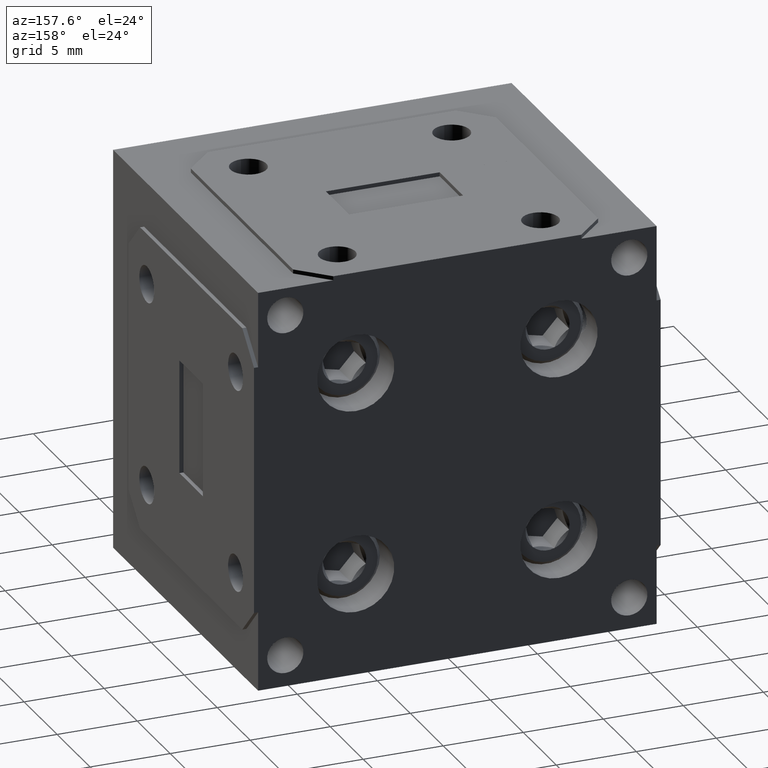
[diagram: clean part render]
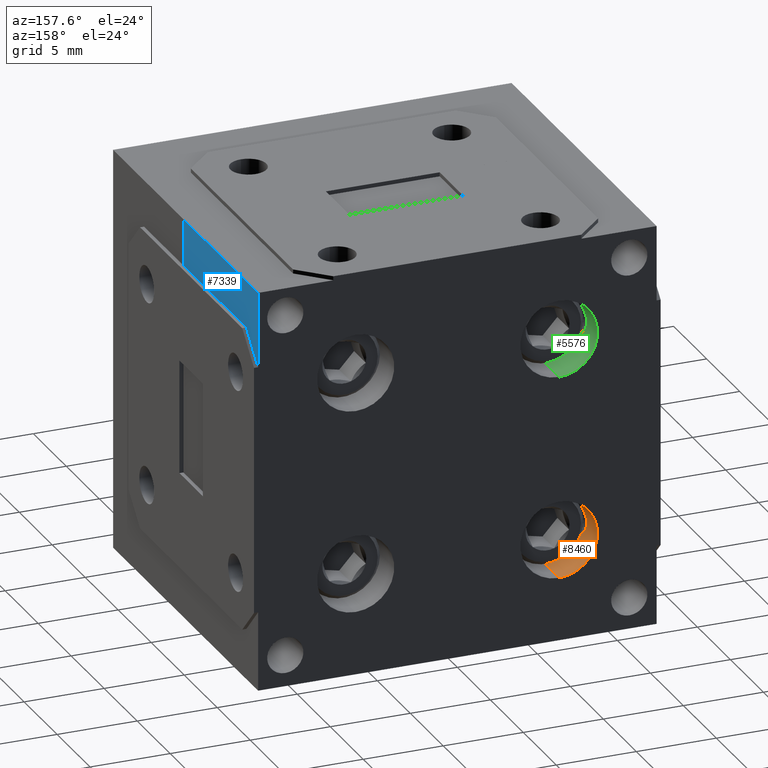
[diagram: same view with three faces highlighted in distinct colors, each labeled with its STEP entity id]
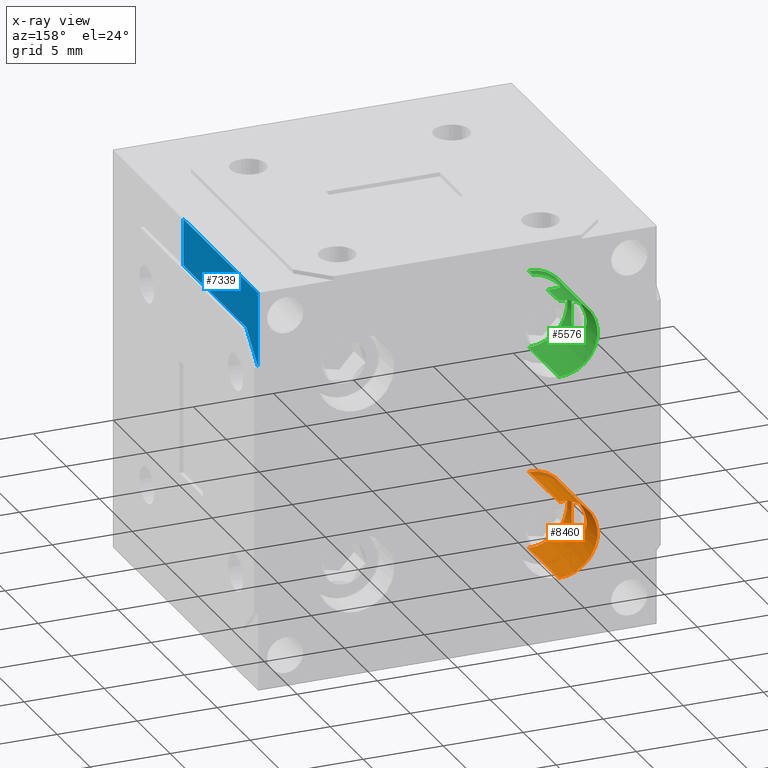
[diagram: x-ray of the same camera — body ghosted, the three highlighted faces saturated]
A machine part, auxiliary view with three faces highlighted in distinct colors.
The next image is the same camera in x-ray (body ghosted, the three faces saturated) — at least one of them is partly hidden behind the body in this view.
Their STEP definitions:

[orange] entity #8460 — the highlighted cylindrical surface (partial cylindrical patch) has radius 2.413 mm, axis along (0, 1, -0).
#75 = CARTESIAN_POINT ( 'NONE',  ( -0.2500000000000000555, 3.953267313498999050E-33, -0.1549999999999999434 ) ) ;
#340 = CARTESIAN_POINT ( 'NONE',  ( -0.2500000000000000000, -0.1799999999999999933, -0.2499999999999999167 ) ) ;
#615 = CARTESIAN_POINT ( 'NONE',  ( -0.3449983278231689710, -0.1544964301837878362, -0.2559392429333746666 ) ) ;
#650 = FACE_OUTER_BOUND ( 'NONE', #8233, .T. ) ;
#762 = EDGE_LOOP ( 'NONE', ( #9475, #9479 ) ) ;
#898 = CARTESIAN_POINT ( 'NONE',  ( -0.3345959505257399824, -0.09819390501398954363, -0.2932981139910527668 ) ) ;
#1309 = EDGE_CURVE ( 'NONE', #11163, #10266, #4270, .T. ) ;
#1386 = CARTESIAN_POINT ( 'NONE',  ( -0.3339330090012268548, -0.1099999999999999867, -0.2055000000000002658 ) ) ;
#1448 = DIRECTION ( 'NONE',  ( 7.450599229762822751E-32, 1.000000000000000000, -9.466600490908429049E-32 ) ) ;
#1467 = CARTESIAN_POINT ( 'NONE',  ( -0.3424465258608579976, -0.1488028439035570527, -0.2725433060635958915 ) ) ;
#1593 = CARTESIAN_POINT ( 'NONE',  ( -0.2500000000000000000, -0.1799999999999999933, -0.3449999999999998623 ) ) ;
#1640 = CARTESIAN_POINT ( 'NONE',  ( -0.3367342582395621564, -0.1324801981696404340, -0.2111636281608454957 ) ) ;
#1667 = CARTESIAN_POINT ( 'NONE',  ( -0.3367542005338751143, -0.08742841267026207897, -0.2112060029014414253 ) ) ;
#1727 = CARTESIAN_POINT ( 'NONE',  ( -0.3424501722324187480, -0.07118854754943666763, -0.2274711323039623478 ) ) ;
#1746 = CARTESIAN_POINT ( 'NONE',  ( -0.2500000000000000555, 3.953267313499000419E-33, -0.1549999999999999434 ) ) ;
#1786 = CARTESIAN_POINT ( 'NONE',  ( -0.2500000000000000000, -1.403327361922701480E-32, -0.3449999999999998623 ) ) ;
#1832 = CARTESIAN_POINT ( 'NONE',  ( -0.3339330090012269103, -0.1070616299841335856, -0.2055000000000003213 ) ) ;
#2106 = EDGE_CURVE ( 'NONE', #9420, #5524, #8877, .T. ) ;
#2297 = ORIENTED_EDGE ( 'NONE', *, *, #1309, .F. ) ;
#2610 = CARTESIAN_POINT ( 'NONE',  ( -0.3382137642819075252, -0.08258897094386105642, -0.2144774960644310335 ) ) ;
#2664 = CARTESIAN_POINT ( 'NONE',  ( -0.3381953826391806972, -0.08264365409062676693, -0.2855718993054891519 ) ) ;
#2754 = ORIENTED_EDGE ( 'NONE', *, *, #2106, .T. ) ;
#2765 = DIRECTION ( 'NONE',  ( 7.450599229762822751E-32, 1.000000000000000000, -9.466600490908429049E-32 ) ) ;
#2802 = DIRECTION ( 'NONE',  ( 7.450599229762822751E-32, 1.000000000000000000, -9.466600490908429049E-32 ) ) ;
#2874 = VERTEX_POINT ( 'NONE', #3973 ) ;
#3156 = CARTESIAN_POINT ( 'NONE',  ( -0.2500000000000000000, -5.040003152864008902E-33, -0.2499999999999999167 ) ) ;
#3189 = FACE_BOUND ( 'NONE', #762, .T. ) ;
#3383 = CARTESIAN_POINT ( 'NONE',  ( -0.3424486551276857971, -0.07119168997360658668, -0.2725425576237807124 ) ) ;
#3438 = AXIS2_PLACEMENT_3D ( 'NONE', #340, #2765, #9787 ) ;
#3552 = ORIENTED_EDGE ( 'NONE', *, *, #7326, .T. ) ;
#3936 = CARTESIAN_POINT ( 'NONE',  ( -0.3382158425526682888, -0.1374157691083584265, -0.2855150718881644401 ) ) ;
#3973 = CARTESIAN_POINT ( 'NONE',  ( -0.3339330090012266883, -0.1099999999999999867, -0.2944999999999998175 ) ) ;
#4000 = CIRCLE ( 'NONE', #5980, 0.09499999999999994560 ) ;
#4064 = CARTESIAN_POINT ( 'NONE',  ( -0.3450016646121912833, -0.1545035536669795428, -0.2441143720188398425 ) ) ;
#4229 = CARTESIAN_POINT ( 'NONE',  ( -0.3339330090012268548, -0.1158847140937387110, -0.2055000000000003213 ) ) ;
#4270 = LINE ( 'NONE', #1746, #9451 ) ;
#4417 = CARTESIAN_POINT ( 'NONE',  ( -0.3340934135959037765, -0.1040701169094729317, -0.2057990154010795603 ) ) ;
#4783 = CARTESIAN_POINT ( 'NONE',  ( -0.3345988383201206617, -0.1218243070672770795, -0.2932924449813524292 ) ) ;
#4896 = CARTESIAN_POINT ( 'NONE',  ( -0.3444148440501480501, -0.1532835225955016256, -0.2618489668328286557 ) ) ;
#5043 = ORIENTED_EDGE ( 'NONE', *, *, #7118, .F. ) ;
#5069 = CARTESIAN_POINT ( 'NONE',  ( -0.3345999727957447156, -0.1218187628125790983, -0.2067109721412530021 ) ) ;
#5170 = DIRECTION ( 'NONE',  ( 7.450599229762822751E-32, 1.000000000000000000, -9.466600490908429049E-32 ) ) ;
#5524 = VERTEX_POINT ( 'NONE', #1786 ) ;
#5742 = CARTESIAN_POINT ( 'NONE',  ( -0.3339330090012266883, -0.1159768379653758480, -0.2944999999999997620 ) ) ;
#5980 = AXIS2_PLACEMENT_3D ( 'NONE', #3156, #8387, #6605 ) ;
#5996 = CARTESIAN_POINT ( 'NONE',  ( -0.3450015499104610028, -0.06549669120197555705, -0.2558538850378767604 ) ) ;
#6003 = VERTEX_POINT ( 'NONE', #1386 ) ;
#6044 = CARTESIAN_POINT ( 'NONE',  ( -0.3367482042580713375, -0.08745759605842039208, -0.2888065790625192197 ) ) ;
#6185 = CARTESIAN_POINT ( 'NONE',  ( -0.2500000000000000555, -0.1799999999999999933, -0.1549999999999999434 ) ) ;
#6600 = CARTESIAN_POINT ( 'NONE',  ( -0.3367504168740192982, -0.1325496257246870091, -0.2888016031854511168 ) ) ;
#6605 = DIRECTION ( 'NONE',  ( 0.000000000000000000, -9.466600490908434523E-32, -1.000000000000000000 ) ) ;
#6657 = CARTESIAN_POINT ( 'NONE',  ( -0.3339330090012266883, -0.1099999999999999867, -0.2944999999999998175 ) ) ;
#6696 = CARTESIAN_POINT ( 'NONE',  ( -0.2500000000000000000, -5.040003152864008902E-33, -0.2499999999999999167 ) ) ;
#6826 = B_SPLINE_CURVE_WITH_KNOTS ( 'NONE', 3,
 ( #6657, #5742, #4783, #6600, #3936, #9221, #1467, #4896, #615, #4064, #7518, #10105, #11074, #9384, #1640, #5069, #4229, #10277 ),
 .UNSPECIFIED., .F., .F.,
 ( 4, 2, 2, 2, 2, 2, 2, 2, 4 ),
 ( 0.000000000000000000, 0.0004483485477138801070, 0.0008966970954277602140, 0.001345045643141640213, 0.001793394190855520428, 0.002241742738569400643, 0.002690091286283280425, 0.003138439833997160641, 0.003586788381711040856 ),
 .UNSPECIFIED. ) ;
#6843 = CARTESIAN_POINT ( 'NONE',  ( -0.3339330090012266883, -0.1099999999999999867, -0.2944999999999998175 ) ) ;
#7104 = VECTOR ( 'NONE', #2802, 39.37007874015748143 ) ;
#7118 = EDGE_CURVE ( 'NONE', #9420, #11163, #7433, .T. ) ;
#7203 = AXIS2_PLACEMENT_3D ( 'NONE', #6696, #1448, #10037 ) ;
#7212 = CARTESIAN_POINT ( 'NONE',  ( -0.2500000000000000000, -1.403327361922701480E-32, -0.3449999999999998623 ) ) ;
#7326 = EDGE_CURVE ( 'NONE', #5524, #10266, #4000, .T. ) ;
#7433 = CIRCLE ( 'NONE', #3438, 0.09499999999999994560 ) ;
#7518 = CARTESIAN_POINT ( 'NONE',  ( -0.3444259485614694083, -0.1533089059176609703, -0.2382095384140537342 ) ) ;
#7724 = CARTESIAN_POINT ( 'NONE',  ( -0.3410639666206250475, -0.07447054290008203736, -0.2225979840531009668 ) ) ;
#7887 = CARTESIAN_POINT ( 'NONE',  ( -0.3449984434583968085, -0.06550332295439689756, -0.2440959170137696199 ) ) ;
#8060 = B_SPLINE_CURVE_WITH_KNOTS ( 'NONE', 3,
 ( #10191, #1832, #4417, #9411, #8681, #1667, #2610, #7724, #1727, #10304, #7887, #5996, #11157, #3383, #9467, #2664, #6044, #898, #9520, #6843 ),
 .UNSPECIFIED., .F., .F.,
 ( 4, 2, 2, 2, 2, 2, 2, 2, 2, 4 ),
 ( 0.003586788381711040856, 0.003810658888973483989, 0.004034529396235927122, 0.004482270410760814255, 0.004930011425285700521, 0.005377752439810587655, 0.005825493454335474788, 0.006273234468860361054, 0.006720975483385249055, 0.007168716497910135321 ),
 .UNSPECIFIED. ) ;
#8200 = EDGE_CURVE ( 'NONE', #2874, #6003, #6826, .T. ) ;
#8233 = EDGE_LOOP ( 'NONE', ( #2297, #5043, #2754, #3552 ) ) ;
#8364 = CYLINDRICAL_SURFACE ( 'NONE', #7203, 0.09499999999999994560 ) ;
#8387 = DIRECTION ( 'NONE',  ( 7.450599229762822751E-32, 1.000000000000000000, -9.466600490908429049E-32 ) ) ;
#8460 = ADVANCED_FACE ( 'NONE', ( #650, #3189 ), #8364, .F. ) ;
#8681 = CARTESIAN_POINT ( 'NONE',  ( -0.3351317422145196900, -0.09552079616980257981, -0.2078199946916732821 ) ) ;
#8877 = LINE ( 'NONE', #7212, #7104 ) ;
#9082 = EDGE_CURVE ( 'NONE', #6003, #2874, #8060, .T. ) ;
#9221 = CARTESIAN_POINT ( 'NONE',  ( -0.3410545475628188883, -0.1455038047312580129, -0.2774303586675238575 ) ) ;
#9384 = CARTESIAN_POINT ( 'NONE',  ( -0.3381998383035614286, -0.1373658509866653166, -0.2144448536244730197 ) ) ;
#9411 = CARTESIAN_POINT ( 'NONE',  ( -0.3346950535537910887, -0.09830754945551961610, -0.2069630722141299894 ) ) ;
#9420 = VERTEX_POINT ( 'NONE', #1593 ) ;
#9451 = VECTOR ( 'NONE', #5170, 39.37007874015748143 ) ;
#9467 = CARTESIAN_POINT ( 'NONE',  ( -0.3410680720331799587, -0.07445653524932845102, -0.2773932801108394131 ) ) ;
#9475 = ORIENTED_EDGE ( 'NONE', *, *, #8200, .T. ) ;
#9479 = ORIENTED_EDGE ( 'NONE', *, *, #9082, .T. ) ;
#9520 = CARTESIAN_POINT ( 'NONE',  ( -0.3339330090012266883, -0.1040312609287718237, -0.2944999999999998175 ) ) ;
#9787 = DIRECTION ( 'NONE',  ( 0.000000000000000000, 0.000000000000000000, -1.000000000000000000 ) ) ;
#10037 = DIRECTION ( 'NONE',  ( 0.000000000000000000, -9.466600490908434523E-32, -1.000000000000000000 ) ) ;
#10105 = CARTESIAN_POINT ( 'NONE',  ( -0.3424333514604743778, -0.1487727485776694780, -0.2273869443920704114 ) ) ;
#10191 = CARTESIAN_POINT ( 'NONE',  ( -0.3339330090012268548, -0.1099999999999999867, -0.2055000000000002658 ) ) ;
#10266 = VERTEX_POINT ( 'NONE', #75 ) ;
#10277 = CARTESIAN_POINT ( 'NONE',  ( -0.3339330090012268548, -0.1099999999999999867, -0.2055000000000002658 ) ) ;
#10304 = CARTESIAN_POINT ( 'NONE',  ( -0.3444173542964717449, -0.06671107199451656311, -0.2381700619983037337 ) ) ;
#11074 = CARTESIAN_POINT ( 'NONE',  ( -0.3410438786873906669, -0.1454776855205396624, -0.2225338014258395614 ) ) ;
#11157 = CARTESIAN_POINT ( 'NONE',  ( -0.3444250559696226954, -0.06669385393442064935, -0.2617825949719425616 ) ) ;
#11163 = VERTEX_POINT ( 'NONE', #6185 ) ;

[blue] entity #7339 — the highlighted planar face has unit normal (1, -0, 0).
#255 = CARTESIAN_POINT ( 'NONE',  ( 0.4899999999999988809, 0.1525000000000000799, 0.1525000000000005795 ) ) ;
#318 = DIRECTION ( 'NONE',  ( -1.353653785402648586E-31, -1.000000000000000000, 9.466600490908491450E-32 ) ) ;
#543 = EDGE_CURVE ( 'NONE', #5689, #9979, #8018, .T. ) ;
#546 = CARTESIAN_POINT ( 'NONE',  ( 0.4899999999999988254, -1.994269307927861094E-32, 0.4899999999999938294 ) ) ;
#774 = EDGE_CURVE ( 'NONE', #9979, #1171, #7435, .T. ) ;
#1171 = VERTEX_POINT ( 'NONE', #546 ) ;
#1298 = FACE_OUTER_BOUND ( 'NONE', #6794, .T. ) ;
#1364 = CARTESIAN_POINT ( 'NONE',  ( 0.4899999999999988809, -3.650793622583775003E-32, 8.160139230994884400E-17 ) ) ;
#2492 = CARTESIAN_POINT ( 'NONE',  ( 0.4899999999999988254, -0.4450000000000000067, 0.3750000000000001665 ) ) ;
#2900 = EDGE_CURVE ( 'NONE', #10242, #5689, #7677, .T. ) ;
#2908 = AXIS2_PLACEMENT_3D ( 'NONE', #1364, #4788, #5356 ) ;
#3064 = ORIENTED_EDGE ( 'NONE', *, *, #2900, .T. ) ;
#3734 = CARTESIAN_POINT ( 'NONE',  ( 0.4899999999999988809, -0.4450000000000000067, 8.160139230994889331E-17 ) ) ;
#3805 = LINE ( 'NONE', #10706, #7805 ) ;
#3840 = VECTOR ( 'NONE', #6005, 39.37007874015748143 ) ;
#3846 = DIRECTION ( 'NONE',  ( -1.665334536937735304E-16, 9.466600490908430144E-32, 1.000000000000000000 ) ) ;
#3906 = VECTOR ( 'NONE', #3846, 39.37007874015748143 ) ;
#4087 = DIRECTION ( 'NONE',  ( -1.665334536937735304E-16, 9.466600490908430144E-32, 1.000000000000000000 ) ) ;
#4218 = EDGE_CURVE ( 'NONE', #10242, #6463, #5599, .T. ) ;
#4301 = VECTOR ( 'NONE', #4087, 39.37007874015748143 ) ;
#4788 = DIRECTION ( 'NONE',  ( 1.000000000000000000, -1.353653785402648586E-31, 1.665334536937735304E-16 ) ) ;
#5356 = DIRECTION ( 'NONE',  ( -1.665334536937735304E-16, 9.466600490908430144E-32, 1.000000000000000000 ) ) ;
#5599 = LINE ( 'NONE', #3734, #3906 ) ;
#5625 = ORIENTED_EDGE ( 'NONE', *, *, #4218, .F. ) ;
#5689 = VERTEX_POINT ( 'NONE', #8284 ) ;
#5768 = CARTESIAN_POINT ( 'NONE',  ( 0.4899999999999988809, -3.650793622583775003E-32, 8.160139230994884400E-17 ) ) ;
#5936 = ORIENTED_EDGE ( 'NONE', *, *, #543, .T. ) ;
#6005 = DIRECTION ( 'NONE',  ( 1.364660605499159645E-32, 1.000000000000000000, -9.466600490908430144E-32 ) ) ;
#6014 = DIRECTION ( 'NONE',  ( 1.177569344012829958E-16, 0.7071067811865483499, -0.7071067811865465735 ) ) ;
#6463 = VERTEX_POINT ( 'NONE', #10202 ) ;
#6767 = EDGE_CURVE ( 'NONE', #1171, #6463, #3805, .T. ) ;
#6794 = EDGE_LOOP ( 'NONE', ( #8203, #10546, #5625, #3064, #5936 ) ) ;
#7093 = CARTESIAN_POINT ( 'NONE',  ( 0.4899999999999988254, -7.634804728567010723E-33, 0.3050000000000003264 ) ) ;
#7195 = VECTOR ( 'NONE', #6014, 39.37007874015748854 ) ;
#7339 = ADVANCED_FACE ( 'NONE', ( #1298 ), #9062, .T. ) ;
#7435 = LINE ( 'NONE', #5768, #4301 ) ;
#7677 = LINE ( 'NONE', #8466, #3840 ) ;
#7805 = VECTOR ( 'NONE', #318, 39.37007874015748143 ) ;
#8018 = LINE ( 'NONE', #255, #7195 ) ;
#8203 = ORIENTED_EDGE ( 'NONE', *, *, #774, .T. ) ;
#8284 = CARTESIAN_POINT ( 'NONE',  ( 0.4899999999999988254, -0.07000000000000007605, 0.3750000000000001665 ) ) ;
#8466 = CARTESIAN_POINT ( 'NONE',  ( 0.4899999999999988254, -1.008184384931124333E-33, 0.3750000000000001665 ) ) ;
#9062 = PLANE ( 'NONE',  #2908 ) ;
#9979 = VERTEX_POINT ( 'NONE', #7093 ) ;
#10202 = CARTESIAN_POINT ( 'NONE',  ( 0.4899999999999988254, -0.4450000000000000067, 0.4899999999999938294 ) ) ;
#10242 = VERTEX_POINT ( 'NONE', #2492 ) ;
#10546 = ORIENTED_EDGE ( 'NONE', *, *, #6767, .T. ) ;
#10706 = CARTESIAN_POINT ( 'NONE',  ( 0.4899999999999988254, 9.878406179613279878E-33, 0.4899999999999938294 ) ) ;

[green] entity #5576 — the highlighted cylindrical surface (partial cylindrical patch) has radius 2.413 mm, axis along (0, 1, -0).
#331 = CARTESIAN_POINT ( 'NONE',  ( -0.3345988383201206617, -0.1218243070672771072, 0.2067075550186475430 ) ) ;
#356 = B_SPLINE_CURVE_WITH_KNOTS ( 'NONE', 3,
 ( #6083, #4506, #331, #7063, #9003, #1229, #1876, #5305, #2039, #1922, #8950, #5472, #3825, #2760, #10506, #4668, #8152, #8787 ),
 .UNSPECIFIED., .F., .F.,
 ( 4, 2, 2, 2, 2, 2, 2, 2, 4 ),
 ( 0.000000000000000000, 0.0004483485477138801070, 0.0008966970954277602140, 0.001345045643141640213, 0.001793394190855520428, 0.002241742738569400643, 0.002690091286283280425, 0.003138439833997160641, 0.003586788381711040856 ),
 .UNSPECIFIED. ) ;
#509 = DIRECTION ( 'NONE',  ( 0.000000000000000000, -9.466600490908429049E-32, -1.000000000000000000 ) ) ;
#545 = VERTEX_POINT ( 'NONE', #8638 ) ;
#725 = CARTESIAN_POINT ( 'NONE',  ( -0.2499999999999948375, -0.06550000000000022471, 0.3450000000000000844 ) ) ;
#756 = CARTESIAN_POINT ( 'NONE',  ( -0.2500000000000000000, 4.229299930167814592E-32, 0.2500000000000000555 ) ) ;
#801 = CARTESIAN_POINT ( 'NONE',  ( -0.2500000000000000555, -0.1799999999999999933, 0.3450000000000000289 ) ) ;
#857 = CARTESIAN_POINT ( 'NONE',  ( -0.2500000000000000555, 5.128626976804116140E-32, 0.3450000000000001399 ) ) ;
#872 = CARTESIAN_POINT ( 'NONE',  ( -0.3424486551276859636, -0.07119168997360653117, 0.2274574423762193154 ) ) ;
#956 = DIRECTION ( 'NONE',  ( 0.000000000000000000, 0.000000000000000000, -1.000000000000000000 ) ) ;
#1229 = CARTESIAN_POINT ( 'NONE',  ( -0.3410545475628188883, -0.1455038047312580129, 0.2225696413324760314 ) ) ;
#1488 = VERTEX_POINT ( 'NONE', #801 ) ;
#1684 = DIRECTION ( 'NONE',  ( 7.450599229762822751E-32, 1.000000000000000000, -9.466600490908429049E-32 ) ) ;
#1695 = ORIENTED_EDGE ( 'NONE', *, *, #3373, .T. ) ;
#1806 = CARTESIAN_POINT ( 'NONE',  ( -0.3339330090012267993, -0.1099999999999999867, 0.2055000000000000993 ) ) ;
#1876 = CARTESIAN_POINT ( 'NONE',  ( -0.3424465258608579976, -0.1488028439035570805, 0.2274566939364041362 ) ) ;
#1922 = CARTESIAN_POINT ( 'NONE',  ( -0.3450016646121913388, -0.1545035536669795428, 0.2558856279811601020 ) ) ;
#1923 = ORIENTED_EDGE ( 'NONE', *, *, #4202, .T. ) ;
#1961 = CARTESIAN_POINT ( 'NONE',  ( -0.3339330090012269103, -0.1099999999999999867, 0.2944999999999996509 ) ) ;
#2039 = CARTESIAN_POINT ( 'NONE',  ( -0.3449983278231689710, -0.1544964301837878362, 0.2440607570666252779 ) ) ;
#2041 = VERTEX_POINT ( 'NONE', #7869 ) ;
#2193 = VECTOR ( 'NONE', #5809, 39.37007874015748143 ) ;
#2258 = CARTESIAN_POINT ( 'NONE',  ( -0.2774132308362309285, -0.1455182393392345230, 0.3410600291899799630 ) ) ;
#2366 = CARTESIAN_POINT ( 'NONE',  ( -0.2725157708610814189, -0.1488180317757235860, 0.3424530048650367142 ) ) ;
#2421 = CARTESIAN_POINT ( 'NONE',  ( -0.3449984434583966975, -0.06550332295439691144, 0.2559040829862304078 ) ) ;
#2506 = FACE_OUTER_BOUND ( 'NONE', #7990, .T. ) ;
#2528 = CARTESIAN_POINT ( 'NONE',  ( -0.3340934135959039430, -0.1040701169094729039, 0.2942009845989203565 ) ) ;
#2570 = FACE_BOUND ( 'NONE', #3183, .T. ) ;
#2639 = CARTESIAN_POINT ( 'NONE',  ( -0.3345959505257399269, -0.09819390501398947424, 0.2067018860089471777 ) ) ;
#2760 = CARTESIAN_POINT ( 'NONE',  ( -0.3381998383035614286, -0.1373658509866653166, 0.2855551463755269803 ) ) ;
#3098 = LINE ( 'NONE', #9125, #2193 ) ;
#3183 = EDGE_LOOP ( 'NONE', ( #7580, #4864 ) ) ;
#3206 = CARTESIAN_POINT ( 'NONE',  ( -0.2932824858765686882, -0.09815460172028375729, 0.3346035107121173025 ) ) ;
#3249 = ORIENTED_EDGE ( 'NONE', *, *, #9640, .F. ) ;
#3368 = CARTESIAN_POINT ( 'NONE',  ( -0.2933097041371746094, -0.1217796439276023351, 0.3345904427897893885 ) ) ;
#3373 = EDGE_CURVE ( 'NONE', #8513, #2041, #7414, .T. ) ;
#3424 = LINE ( 'NONE', #9509, #10566 ) ;
#3550 = AXIS2_PLACEMENT_3D ( 'NONE', #8743, #9572, #956 ) ;
#3561 = VERTEX_POINT ( 'NONE', #4723 ) ;
#3607 = ORIENTED_EDGE ( 'NONE', *, *, #4959, .T. ) ;
#3825 = CARTESIAN_POINT ( 'NONE',  ( -0.3410438786873907224, -0.1454776855205396346, 0.2774661985741603831 ) ) ;
#4103 = CIRCLE ( 'NONE', #3550, 0.09499999999999997335 ) ;
#4202 = EDGE_CURVE ( 'NONE', #545, #8643, #7730, .T. ) ;
#4282 = CARTESIAN_POINT ( 'NONE',  ( -0.3346950535537911997, -0.09830754945551956059, 0.2930369277858699828 ) ) ;
#4506 = CARTESIAN_POINT ( 'NONE',  ( -0.3339330090012267993, -0.1159768379653758480, 0.2055000000000000993 ) ) ;
#4658 = VERTEX_POINT ( 'NONE', #8904 ) ;
#4668 = CARTESIAN_POINT ( 'NONE',  ( -0.3345999727957448822, -0.1218187628125790983, 0.2932890278587469424 ) ) ;
#4723 = CARTESIAN_POINT ( 'NONE',  ( -0.3339330090012267993, -0.1099999999999999867, 0.2055000000000000993 ) ) ;
#4864 = ORIENTED_EDGE ( 'NONE', *, *, #11132, .T. ) ;
#4926 = B_SPLINE_CURVE_WITH_KNOTS ( 'NONE', 3,
 ( #9499, #10279, #2528, #4282, #5179, #5129, #8597, #6878, #7754, #11010, #2421, #8655, #6074, #872, #6940, #5232, #10392, #2639, #9548, #1806 ),
 .UNSPECIFIED., .F., .F.,
 ( 4, 2, 2, 2, 2, 2, 2, 2, 2, 4 ),
 ( 0.003586788381711040856, 0.003810658888973484423, 0.004034529396235927989, 0.004482270410760814255, 0.004930011425285700521, 0.005377752439810585920, 0.005825493454335472186, 0.006273234468860358452, 0.006720975483385244718, 0.007168716497910130984 ),
 .UNSPECIFIED. ) ;
#4959 = EDGE_CURVE ( 'NONE', #4658, #545, #3424, .T. ) ;
#5014 = CARTESIAN_POINT ( 'NONE',  ( -0.2559748974696136048, -0.06550000000000025246, 0.3450000000000004174 ) ) ;
#5129 = CARTESIAN_POINT ( 'NONE',  ( -0.3367542005338751143, -0.08742841267026210672, 0.2887939970985584637 ) ) ;
#5179 = CARTESIAN_POINT ( 'NONE',  ( -0.3351317422145198566, -0.09552079616980262144, 0.2921800053083267179 ) ) ;
#5232 = CARTESIAN_POINT ( 'NONE',  ( -0.3381953826391806972, -0.08264365409062669754, 0.2144281006945108481 ) ) ;
#5305 = CARTESIAN_POINT ( 'NONE',  ( -0.3444148440501480501, -0.1532835225955016534, 0.2381510331671713165 ) ) ;
#5458 = LINE ( 'NONE', #8254, #6870 ) ;
#5472 = CARTESIAN_POINT ( 'NONE',  ( -0.3424333514604745443, -0.1487727485776694225, 0.2726130556079295331 ) ) ;
#5576 = ADVANCED_FACE ( 'NONE', ( #2506, #2570 ), #7792, .F. ) ;
#5692 = CARTESIAN_POINT ( 'NONE',  ( -0.2500000000000000555, -0.1544999999999997486, 0.3450000000000000844 ) ) ;
#5747 = CARTESIAN_POINT ( 'NONE',  ( -0.2725800388264958962, -0.07121389443530597163, 0.3424392443004489750 ) ) ;
#5807 = CARTESIAN_POINT ( 'NONE',  ( -0.2558897751582207003, -0.1544999999999991103, 0.3450000000000000844 ) ) ;
#5809 = DIRECTION ( 'NONE',  ( 7.450599229762822751E-32, 1.000000000000000000, -9.466600490908429049E-32 ) ) ;
#5859 = CARTESIAN_POINT ( 'NONE',  ( -0.2888177413251773462, -0.08748622638311966127, 0.3367427839470368278 ) ) ;
#6074 = CARTESIAN_POINT ( 'NONE',  ( -0.3444250559696229175, -0.06669385393442063548, 0.2382174050280574662 ) ) ;
#6083 = CARTESIAN_POINT ( 'NONE',  ( -0.3339330090012267993, -0.1099999999999999867, 0.2055000000000000993 ) ) ;
#6292 = ORIENTED_EDGE ( 'NONE', *, *, #9074, .F. ) ;
#6721 = CARTESIAN_POINT ( 'NONE',  ( -0.2855358070763086564, -0.08261095079979506595, 0.3382073855904029758 ) ) ;
#6824 = CARTESIAN_POINT ( 'NONE',  ( -0.2618297315195108332, -0.06670707228128297528, 0.3444189043169874065 ) ) ;
#6870 = VECTOR ( 'NONE', #9768, 39.37007874015748143 ) ;
#6878 = CARTESIAN_POINT ( 'NONE',  ( -0.3410639666206253251, -0.07447054290008206512, 0.2774020159468989499 ) ) ;
#6940 = CARTESIAN_POINT ( 'NONE',  ( -0.3410680720331801252, -0.07445653524932839551, 0.2226067198891606147 ) ) ;
#7063 = CARTESIAN_POINT ( 'NONE',  ( -0.3367504168740192982, -0.1325496257246870646, 0.2111983968145487445 ) ) ;
#7239 = EDGE_CURVE ( 'NONE', #1488, #2041, #3098, .T. ) ;
#7414 = B_SPLINE_CURVE_WITH_KNOTS ( 'NONE', 3,
 ( #725, #5014, #6824, #5747, #10958, #6721, #5859, #3206, #7581, #9334, #3368, #10109, #9393, #2258, #2366, #7706, #5807, #5692 ),
 .UNSPECIFIED., .F., .F.,
 ( 4, 2, 2, 2, 2, 2, 2, 2, 4 ),
 ( 0.000000000000000000, 0.0004483916350306726018, 0.0008967832700613452036, 0.001345174905092017155, 0.001793566540122689540, 0.002241958175153361925, 0.002690349810184033442, 0.003138741445214705827, 0.003587133080245378212 ),
 .UNSPECIFIED. ) ;
#7580 = ORIENTED_EDGE ( 'NONE', *, *, #10767, .T. ) ;
#7581 = CARTESIAN_POINT ( 'NONE',  ( -0.2944951536483351173, -0.1040570071302006905, 0.3339355784617926148 ) ) ;
#7706 = CARTESIAN_POINT ( 'NONE',  ( -0.2618286634437002602, -0.1532883615946085964, 0.3444171635200873327 ) ) ;
#7730 = CIRCLE ( 'NONE', #9525, 0.09500000000000004274 ) ;
#7754 = CARTESIAN_POINT ( 'NONE',  ( -0.3424501722324188036, -0.07118854754943666763, 0.2725288676960376244 ) ) ;
#7792 = CYLINDRICAL_SURFACE ( 'NONE', #9964, 0.09500000000000001499 ) ;
#7869 = CARTESIAN_POINT ( 'NONE',  ( -0.2500000000000000555, -0.1544999999999997486, 0.3450000000000000844 ) ) ;
#7990 = EDGE_LOOP ( 'NONE', ( #9709, #6292, #3607, #1923, #3249, #1695 ) ) ;
#8152 = CARTESIAN_POINT ( 'NONE',  ( -0.3339330090012269103, -0.1158847140937387110, 0.2944999999999997065 ) ) ;
#8254 = CARTESIAN_POINT ( 'NONE',  ( -0.2500000000000000555, 5.128626976804116140E-32, 0.3450000000000000844 ) ) ;
#8513 = VERTEX_POINT ( 'NONE', #9203 ) ;
#8560 = DIRECTION ( 'NONE',  ( 7.450599229762822751E-32, 1.000000000000000000, -9.466600490908429049E-32 ) ) ;
#8597 = CARTESIAN_POINT ( 'NONE',  ( -0.3382137642819074697, -0.08258897094386102866, 0.2855225039355689387 ) ) ;
#8638 = CARTESIAN_POINT ( 'NONE',  ( -0.2500000000000000000, 3.329972883531513592E-32, 0.1550000000000000266 ) ) ;
#8643 = VERTEX_POINT ( 'NONE', #857 ) ;
#8655 = CARTESIAN_POINT ( 'NONE',  ( -0.3450015499104610583, -0.06549669120197555705, 0.2441461149621232396 ) ) ;
#8743 = CARTESIAN_POINT ( 'NONE',  ( -0.2500000000000000000, -0.1799999999999999933, 0.2500000000000000555 ) ) ;
#8787 = CARTESIAN_POINT ( 'NONE',  ( -0.3339330090012269103, -0.1099999999999999867, 0.2944999999999996509 ) ) ;
#8904 = CARTESIAN_POINT ( 'NONE',  ( -0.2500000000000000000, -0.1799999999999999933, 0.1550000000000000822 ) ) ;
#8950 = CARTESIAN_POINT ( 'NONE',  ( -0.3444259485614694638, -0.1533089059176609981, 0.2617904615859461548 ) ) ;
#9003 = CARTESIAN_POINT ( 'NONE',  ( -0.3382158425526682888, -0.1374157691083584265, 0.2144849281118355322 ) ) ;
#9074 = EDGE_CURVE ( 'NONE', #4658, #1488, #4103, .T. ) ;
#9125 = CARTESIAN_POINT ( 'NONE',  ( -0.2500000000000000555, 5.128626976804116140E-32, 0.3450000000000000844 ) ) ;
#9203 = CARTESIAN_POINT ( 'NONE',  ( -0.2499999999999948375, -0.06550000000000022471, 0.3450000000000000844 ) ) ;
#9334 = CARTESIAN_POINT ( 'NONE',  ( -0.2945048165772347626, -0.1158701928304037426, 0.3339304553266058684 ) ) ;
#9393 = CARTESIAN_POINT ( 'NONE',  ( -0.2855112446063674536, -0.1374222912453772205, 0.3382177173104543577 ) ) ;
#9441 = VERTEX_POINT ( 'NONE', #1961 ) ;
#9485 = DIRECTION ( 'NONE',  ( 0.000000000000000000, -9.466600490908431238E-32, -1.000000000000000000 ) ) ;
#9499 = CARTESIAN_POINT ( 'NONE',  ( -0.3339330090012269103, -0.1099999999999999867, 0.2944999999999996509 ) ) ;
#9509 = CARTESIAN_POINT ( 'NONE',  ( -0.2500000000000000000, 3.329972883531513592E-32, 0.1550000000000000544 ) ) ;
#9525 = AXIS2_PLACEMENT_3D ( 'NONE', #9891, #9947, #509 ) ;
#9548 = CARTESIAN_POINT ( 'NONE',  ( -0.3339330090012268548, -0.1040312609287717960, 0.2055000000000000993 ) ) ;
#9572 = DIRECTION ( 'NONE',  ( 7.450599229762822751E-32, 1.000000000000000000, -9.466600490908429049E-32 ) ) ;
#9640 = EDGE_CURVE ( 'NONE', #8513, #8643, #5458, .T. ) ;
#9709 = ORIENTED_EDGE ( 'NONE', *, *, #7239, .F. ) ;
#9768 = DIRECTION ( 'NONE',  ( 7.450599229762822751E-32, 1.000000000000000000, -9.466600490908429049E-32 ) ) ;
#9891 = CARTESIAN_POINT ( 'NONE',  ( -0.2500000000000000000, 4.229299930167814592E-32, 0.2500000000000000555 ) ) ;
#9947 = DIRECTION ( 'NONE',  ( 7.450599229762822751E-32, 1.000000000000000000, -9.466600490908429049E-32 ) ) ;
#9964 = AXIS2_PLACEMENT_3D ( 'NONE', #756, #1684, #9485 ) ;
#10109 = CARTESIAN_POINT ( 'NONE',  ( -0.2887921482976021359, -0.1325756442647291200, 0.3367550731328092239 ) ) ;
#10279 = CARTESIAN_POINT ( 'NONE',  ( -0.3339330090012268548, -0.1070616299841335717, 0.2944999999999996509 ) ) ;
#10392 = CARTESIAN_POINT ( 'NONE',  ( -0.3367482042580714485, -0.08745759605842035045, 0.2111934209374807525 ) ) ;
#10506 = CARTESIAN_POINT ( 'NONE',  ( -0.3367342582395622119, -0.1324801981696404340, 0.2888363718391544488 ) ) ;
#10566 = VECTOR ( 'NONE', #8560, 39.37007874015748143 ) ;
#10767 = EDGE_CURVE ( 'NONE', #3561, #9441, #356, .T. ) ;
#10958 = CARTESIAN_POINT ( 'NONE',  ( -0.2774559581117573281, -0.07451586319464166552, 0.3410467287793696456 ) ) ;
#11010 = CARTESIAN_POINT ( 'NONE',  ( -0.3444173542964719115, -0.06671107199451659087, 0.2618299380016962941 ) ) ;
#11132 = EDGE_CURVE ( 'NONE', #9441, #3561, #4926, .T. ) ;